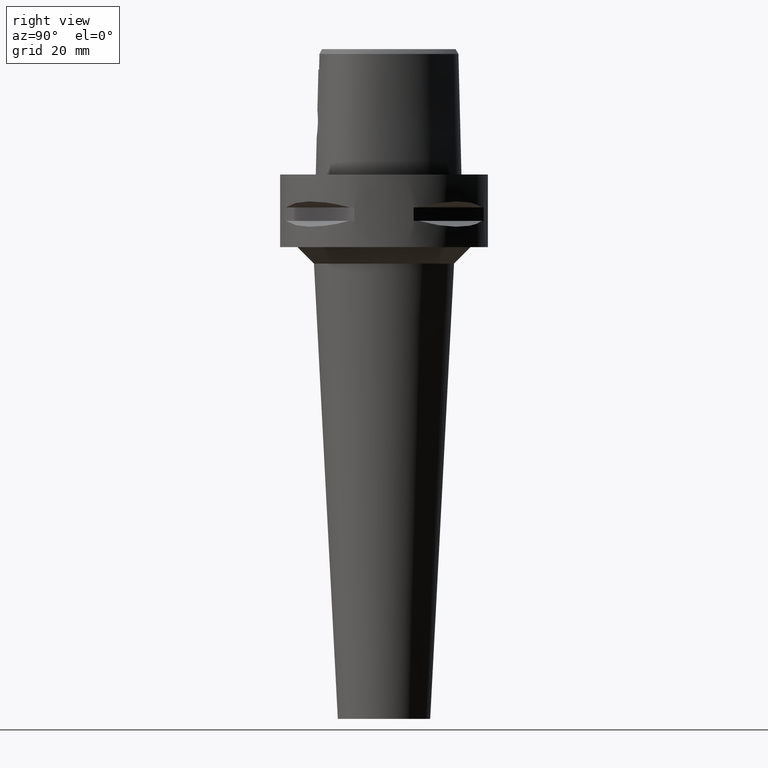
[diagram: clean part render]
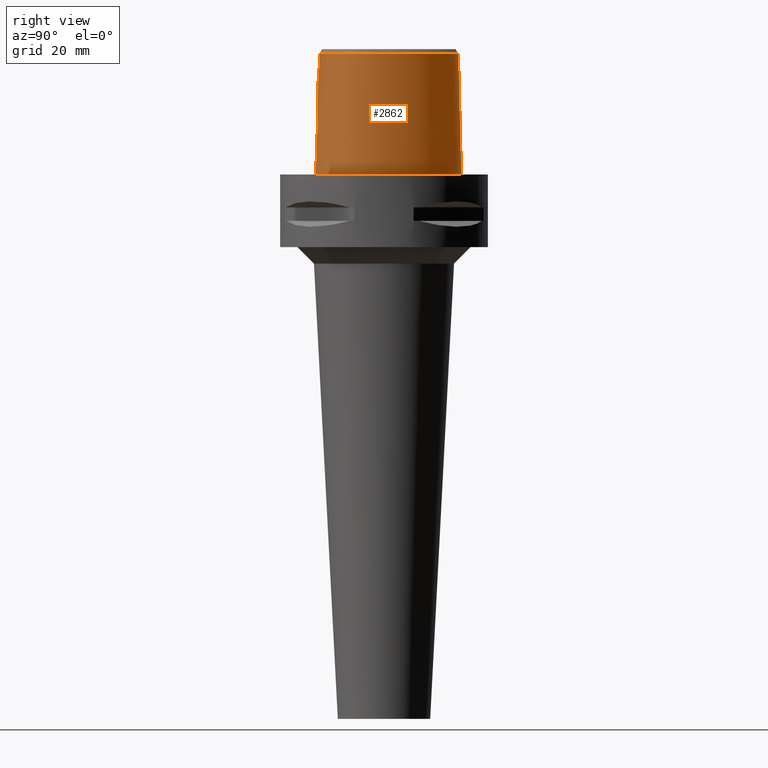
[diagram: same view with one face highlighted and labeled with its STEP entity id]
A machine part, right view. The second image highlights one B-rep face of the part: STEP entity #2862.
In plain terms, the highlighted face is a freeform B-spline surface patch.
Its self-contained STEP definition (entity closure, byte-faithful):
#128=CARTESIAN_POINT('',(3.637738219117E0,-1.956971420299E1,3.652185956444E1));
#138=CARTESIAN_POINT('',(-1.838219482523E-11,2.256201468012E1,
3.652186680744E1));
#139=CARTESIAN_POINT('',(4.171993584307E-1,2.256201468011E1,3.652186680744E1));
#140=CARTESIAN_POINT('',(1.249603453523E0,2.251676058831E1,3.652181696066E1));
#141=CARTESIAN_POINT('',(2.580622632077E0,2.229836723835E1,3.652187151887E1));
#142=CARTESIAN_POINT('',(3.971130271608E0,2.191470946448E1,3.652187009073E1));
#143=CARTESIAN_POINT('',(5.447496043330E0,2.133954691984E1,3.652186509164E1));
#144=CARTESIAN_POINT('',(7.007850867119E0,2.054465954524E1,3.652186932336E1));
#145=CARTESIAN_POINT('',(8.632616514144E0,1.951126396160E1,3.652186894074E1));
#146=CARTESIAN_POINT('',(1.030418514777E1,1.822178431263E1,3.652186431496E1));
#147=CARTESIAN_POINT('',(1.201370456549E1,1.664929386614E1,3.652187317193E1));
#148=CARTESIAN_POINT('',(1.374594834486E1,1.476247980046E1,3.652185738440E1));
#149=CARTESIAN_POINT('',(1.544687040995E1,1.256021799104E1,3.652184335891E1));
#150=CARTESIAN_POINT('',(1.700153988003E1,1.015329342093E1,3.652186371429E1));
#151=CARTESIAN_POINT('',(1.835350625169E1,7.622001081572E0,3.652186817750E1));
#152=CARTESIAN_POINT('',(1.946241133772E1,5.048633134594E0,3.652186542705E1));
#153=CARTESIAN_POINT('',(2.028765594702E1,2.576626585662E0,3.652185910711E1));
#154=CARTESIAN_POINT('',(2.084580456606E1,2.742406849541E-1,3.652187534039E1));
#155=CARTESIAN_POINT('',(2.117115318152E1,-1.849196009891E0,3.652186225802E1));
#156=CARTESIAN_POINT('',(2.129340838171E1,-3.800778834787E0,3.652186975641E1));
#157=CARTESIAN_POINT('',(2.123867543104E1,-5.574357211978E0,3.652186774372E1));
#158=CARTESIAN_POINT('',(2.102929399417E1,-7.185750783590E0,3.652186494827E1));
#159=CARTESIAN_POINT('',(2.069138192977E1,-8.617506394224E0,3.652187151289E1));
#160=CARTESIAN_POINT('',(2.024279198428E1,-9.899629971922E0,3.652185499921E1));
#161=CARTESIAN_POINT('',(1.969156416648E1,-1.105822883391E1,3.652188522277E1));
#162=CARTESIAN_POINT('',(1.902337791240E1,-1.213408646941E1,3.652185335468E1));
#163=CARTESIAN_POINT('',(1.820664389284E1,-1.317508257993E1,3.652187323368E1));
#164=CARTESIAN_POINT('',(1.722230521342E1,-1.418809487737E1,3.652186624130E1));
#165=CARTESIAN_POINT('',(1.602873964973E1,-1.518694737334E1,3.652187125588E1));
#166=CARTESIAN_POINT('',(1.459982171018E1,-1.615558792880E1,3.652186779895E1));
#167=CARTESIAN_POINT('',(1.294313851175E1,-1.705908406111E1,3.652186209944E1));
#168=CARTESIAN_POINT('',(1.103559455739E1,-1.788403408934E1,3.652187916097E1));
#169=CARTESIAN_POINT('',(8.848224265328E0,-1.860864606153E1,3.652185652239E1));
#170=CARTESIAN_POINT('',(6.398000191490E0,-1.919437085725E1,3.652188342574E1));
#171=CARTESIAN_POINT('',(4.579564960882E0,-1.946936569377E1,3.652183536802E1));
#172=CARTESIAN_POINT('',(3.637738219117E0,-1.956971420299E1,3.652185956444E1));
#243=DIRECTION('',(-1.665636293796E-9,-2.499140646182E-2,-9.996876660253E-1));
#244=VECTOR('',#243,1.225382733632E1);
#245=CARTESIAN_POINT('',(2.041042029991E-8,-1.988004246002E1,3.180000004972E1));
#246=LINE('',#245,#244);
#263=CARTESIAN_POINT('',(-6.476573784197E-13,-2.038876923348E1,1.145E1));
#268=DIRECTION('',(-3.953538116337E-13,-2.499051295390E-2,-9.996876883619E-1));
#269=VECTOR('',#268,1.145357708542E1);
#270=CARTESIAN_POINT('',(-6.476573784197E-13,-2.038876923348E1,1.145E1));
#271=LINE('',#270,#269);
#291=CARTESIAN_POINT('',(-5.175872735981E-12,-2.0675E1,5.617728504603E-14));
#292=CARTESIAN_POINT('',(9.993560509802E-1,-2.0675E1,5.617728504603E-14));
#293=CARTESIAN_POINT('',(2.955454059954E0,-2.059182991098E1,
-2.607196872392E-14));
#294=CARTESIAN_POINT('',(5.793056832366E0,-2.023445547095E1,0.E0));
#295=CARTESIAN_POINT('',(8.440299845030E0,-1.966898990197E1,0.E0));
#296=CARTESIAN_POINT('',(1.082569887884E1,-1.893751788510E1,0.E0));
#297=CARTESIAN_POINT('',(1.292144293781E1,-1.808304144246E1,0.E0));
#298=CARTESIAN_POINT('',(1.473190987268E1,-1.714161088191E1,0.E0));
#299=CARTESIAN_POINT('',(1.628058086811E1,-1.613700341594E1,0.E0));
#300=CARTESIAN_POINT('',(1.758462319708E1,-1.509429163050E1,0.E0));
#301=CARTESIAN_POINT('',(1.868311493360E1,-1.401452497844E1,0.E0));
#302=CARTESIAN_POINT('',(1.959652438141E1,-1.290475345799E1,0.E0));
#303=CARTESIAN_POINT('',(2.036064678625E1,-1.173722907498E1,0.E0));
#304=CARTESIAN_POINT('',(2.098286737742E1,-1.049796407517E1,0.E0));
#305=CARTESIAN_POINT('',(2.148460262653E1,-9.152658909068E0,0.E0));
#306=CARTESIAN_POINT('',(2.186688955230E1,-7.668741930683E0,0.E0));
#307=CARTESIAN_POINT('',(2.211748022392E1,-6.011344606948E0,0.E0));
#308=CARTESIAN_POINT('',(2.221114513228E1,-4.165101131631E0,0.E0));
#309=CARTESIAN_POINT('',(2.211859909826E1,-2.119791264276E0,0.E0));
#310=CARTESIAN_POINT('',(2.180697303124E1,1.274638893092E-1,0.E0));
#311=CARTESIAN_POINT('',(2.124390727169E1,2.561688994167E0,0.E0));
#312=CARTESIAN_POINT('',(2.040432990039E1,5.142967568817E0,0.E0));
#313=CARTESIAN_POINT('',(1.928615762684E1,7.790527726073E0,0.E0));
#314=CARTESIAN_POINT('',(1.790818983488E1,1.041471447125E1,0.E0));
#315=CARTESIAN_POINT('',(1.631740085403E1,1.291115934797E1,0.E0));
#316=CARTESIAN_POINT('',(1.457981575214E1,1.519116277501E1,0.E0));
#317=CARTESIAN_POINT('',(1.276360468057E1,1.719471030503E1,0.E0));
#318=CARTESIAN_POINT('',(1.094031032691E1,1.888405274651E1,0.E0));
#319=CARTESIAN_POINT('',(9.153147211203E0,2.026455207171E1,0.E0));
#320=CARTESIAN_POINT('',(7.435015692264E0,2.135402119262E1,0.E0));
#321=CARTESIAN_POINT('',(5.795953209949E0,2.218530691809E1,0.E0));
#322=CARTESIAN_POINT('',(4.238113018427E0,2.278980944085E1,0.E0));
#323=CARTESIAN_POINT('',(2.755912777143E0,2.319591735050E1,0.E0));
#324=CARTESIAN_POINT('',(1.346169757093E0,2.342625517229E1,
-2.473230234680E-14));
#325=CARTESIAN_POINT('',(4.420725725798E-1,2.347499999999E1,
5.329070518201E-14));
#326=CARTESIAN_POINT('',(3.587341913880E-11,2.347499999999E1,
5.329070518201E-14));
#331=CARTESIAN_POINT('',(3.587341913880E-11,2.347499999999E1,
5.329070518201E-14));
#366=CARTESIAN_POINT('',(-5.175872735981E-12,-2.0675E1,5.617728504603E-14));
#909=CARTESIAN_POINT('',(-6.476573784197E-13,-2.038876923348E1,1.145E1));
#910=CARTESIAN_POINT('',(3.839028848140E-1,-2.038876923348E1,1.145E1));
#911=CARTESIAN_POINT('',(1.152243462379E0,-2.037313052447E1,1.156012186274E1));
#912=CARTESIAN_POINT('',(2.211490755070E0,-2.030915438448E1,1.204130376657E1));
#913=CARTESIAN_POINT('',(3.098704077024E0,-2.022090614128E1,1.280612785735E1));
#914=CARTESIAN_POINT('',(3.733987862874E0,-2.013198238112E1,1.379293071204E1));
#915=CARTESIAN_POINT('',(4.063573976196E0,-2.006557535339E1,1.491481271372E1));
#916=CARTESIAN_POINT('',(4.063511810830E0,-2.003615093182E1,1.608355379961E1));
#917=CARTESIAN_POINT('',(3.736209643929E0,-2.004600944296E1,1.720107654896E1));
#918=CARTESIAN_POINT('',(3.105216981776E0,-2.008524534153E1,1.818587507386E1));
#919=CARTESIAN_POINT('',(2.221193572314E0,-2.013542929294E1,1.895288049261E1));
#920=CARTESIAN_POINT('',(1.156612824137E0,-2.017600430851E1,1.943925632080E1));
#921=CARTESIAN_POINT('',(3.854202652826E-1,-2.018628283969E1,1.955E1));
#922=CARTESIAN_POINT('',(0.E0,-2.018628283969E1,1.955E1));
#927=CARTESIAN_POINT('',(3.736696120838E0,-1.967778323292E1,3.180000004973E1));
#928=CARTESIAN_POINT('',(3.726005752326E0,-1.966575923680E1,3.232454431401E1));
#929=CARTESIAN_POINT('',(3.704089546608E0,-1.964135163374E1,3.337368958252E1));
#930=CARTESIAN_POINT('',(3.671106187705E0,-1.960533295284E1,3.494764256979E1));
#931=CARTESIAN_POINT('',(3.649042743234E0,-1.958170238761E1,3.599710209057E1));
#932=CARTESIAN_POINT('',(3.637738219117E0,-1.956971420299E1,3.652185956444E1));
#937=DIRECTION('',(1.485101229638E-12,2.499051290972E-2,-9.996876883630E-1));
#938=VECTOR('',#937,3.653327657485E1);
#939=CARTESIAN_POINT('',(-1.838219482523E-11,2.256201468012E1,
3.652186680744E1));
#940=LINE('',#939,#938);
#944=CARTESIAN_POINT('',(3.736696120838E0,-1.967778323292E1,3.180000004973E1));
#945=CARTESIAN_POINT('',(3.322953877844E0,-1.972294683117E1,3.180000004973E1));
#946=CARTESIAN_POINT('',(2.494485023251E0,-1.979770229043E1,3.179999998342E1));
#947=CARTESIAN_POINT('',(1.247889117313E0,-1.986528006854E1,3.179999998343E1));
#948=CARTESIAN_POINT('',(4.161790006858E-1,-1.988004246001E1,3.180000004972E1));
#949=CARTESIAN_POINT('',(2.041042029991E-8,-1.988004246002E1,3.180000004972E1));
#954=CARTESIAN_POINT('',(2.041042029991E-8,-1.988004246002E1,3.180000004972E1));
#1443=VERTEX_POINT('',#128);
#1444=VERTEX_POINT('',#927);
#1450=CARTESIAN_POINT('',(-1.838219482523E-11,2.256201468012E1,
3.652186680744E1));
#1451=VERTEX_POINT('',#1450);
#1452=VERTEX_POINT('',#331);
#1453=VERTEX_POINT('',#366);
#1454=VERTEX_POINT('',#954);
#1455=CARTESIAN_POINT('',(0.E0,-2.018628283969E1,1.955E1));
#1456=VERTEX_POINT('',#1455);
#1457=VERTEX_POINT('',#263);
#2750=CARTESIAN_POINT('',(-6.840631435669E-1,-2.068668116117E1,
-7.304375700276E-1));
#2751=CARTESIAN_POINT('',(-6.779734146276E-1,-2.037023488671E1,
1.193048031045E1));
#2752=CARTESIAN_POINT('',(-6.718836856883E-1,-2.005378861225E1,
2.459139819093E1));
#2753=CARTESIAN_POINT('',(-6.657939567489E-1,-1.973734233780E1,
3.725231607141E1));
#2754=CARTESIAN_POINT('',(-4.561077449323E-1,-2.069106755346E1,
-7.304375700276E-1));
#2755=CARTESIAN_POINT('',(-4.520500676791E-1,-2.037458452356E1,
1.193048031045E1));
#2756=CARTESIAN_POINT('',(-4.479923904260E-1,-2.005810149367E1,
2.459139819093E1));
#2757=CARTESIAN_POINT('',(-4.439347131729E-1,-1.974161846377E1,
3.725231607141E1));
#2758=CARTESIAN_POINT('',(1.886855603127E0,-2.071358919265E1,
-7.304375700276E-1));
#2759=CARTESIAN_POINT('',(1.870063864694E0,-2.039691456227E1,1.193048031045E1));
#2760=CARTESIAN_POINT('',(1.853272126261E0,-2.008023993189E1,2.459139819093E1));
#2761=CARTESIAN_POINT('',(1.836480387828E0,-1.976356530151E1,3.725231607141E1));
#2762=CARTESIAN_POINT('',(6.344715576210E0,-2.031619964696E1,
-7.304375700276E-1));
#2763=CARTESIAN_POINT('',(6.288476588238E0,-2.000290576642E1,1.193048031045E1));
#2764=CARTESIAN_POINT('',(6.232237600266E0,-1.968961188588E1,2.459139819093E1));
#2765=CARTESIAN_POINT('',(6.175998612294E0,-1.937631800534E1,3.725231607141E1));
#2766=CARTESIAN_POINT('',(1.123887130159E1,-1.891049775755E1,
-7.304375700276E-1));
#2767=CARTESIAN_POINT('',(1.113012657354E1,-1.861140120991E1,1.193048031045E1));
#2768=CARTESIAN_POINT('',(1.102138184550E1,-1.831230466227E1,2.459139819093E1));
#2769=CARTESIAN_POINT('',(1.091263711746E1,-1.801320811462E1,3.725231607141E1));
#2770=CARTESIAN_POINT('',(1.468244496983E1,-1.723001772791E1,
-7.304375700276E-1));
#2771=CARTESIAN_POINT('',(1.452531265879E1,-1.695413752749E1,1.193048031045E1));
#2772=CARTESIAN_POINT('',(1.436818034774E1,-1.667825732708E1,2.459139819093E1));
#2773=CARTESIAN_POINT('',(1.421104803669E1,-1.640237712666E1,3.725231607141E1));
#2774=CARTESIAN_POINT('',(1.697022730940E1,-1.569280482899E1,
-7.304375700276E-1));
#2775=CARTESIAN_POINT('',(1.677374386271E1,-1.544292477241E1,1.193048031045E1));
#2776=CARTESIAN_POINT('',(1.657726041602E1,-1.519304471583E1,2.459139819093E1));
#2777=CARTESIAN_POINT('',(1.638077696933E1,-1.494316465925E1,3.725231607141E1));
#2778=CARTESIAN_POINT('',(1.858171406387E1,-1.418198046361E1,
-7.304375700276E-1));
#2779=CARTESIAN_POINT('',(1.835112158129E1,-1.396357039635E1,1.193048031045E1));
#2780=CARTESIAN_POINT('',(1.812052909872E1,-1.374516032909E1,2.459139819093E1));
#2781=CARTESIAN_POINT('',(1.788993661614E1,-1.352675026183E1,3.725231607141E1));
#2782=CARTESIAN_POINT('',(1.966427014404E1,-1.283600704512E1,
-7.304375700276E-1));
#2783=CARTESIAN_POINT('',(1.940779773029E1,-1.264961930470E1,1.193048031045E1));
#2784=CARTESIAN_POINT('',(1.915132531654E1,-1.246323156428E1,2.459139819093E1));
#2785=CARTESIAN_POINT('',(1.889485290278E1,-1.227684382385E1,3.725231607141E1));
#2786=CARTESIAN_POINT('',(2.036546124275E1,-1.175800453071E1,
-7.304375700276E-1));
#2787=CARTESIAN_POINT('',(2.009084478490E1,-1.159945464424E1,1.193048031045E1));
#2788=CARTESIAN_POINT('',(1.981622832704E1,-1.144090475777E1,2.459139819093E1));
#2789=CARTESIAN_POINT('',(1.954161186918E1,-1.128235487130E1,3.725231607141E1));
#2790=CARTESIAN_POINT('',(2.094844325616E1,-1.061175396887E1,
-7.304375700276E-1));
#2791=CARTESIAN_POINT('',(2.065879053281E1,-1.048283621678E1,1.193048031045E1));
#2792=CARTESIAN_POINT('',(2.036913780946E1,-1.035391846470E1,2.459139819093E1));
#2793=CARTESIAN_POINT('',(2.007948508612E1,-1.022500071261E1,3.725231607141E1));
#2794=CARTESIAN_POINT('',(2.157281239E1,-9.001246194403E0,-7.304375700276E-1));
#2795=CARTESIAN_POINT('',(2.126836747175E1,-8.910752262246E0,1.193048031045E1));
#2796=CARTESIAN_POINT('',(2.096392255350E1,-8.820258330089E0,2.459139819093E1));
#2797=CARTESIAN_POINT('',(2.065947763525E1,-8.729764397932E0,3.725231607141E1));
#2798=CARTESIAN_POINT('',(2.207548128839E1,-6.850245535093E0,
-7.304375700276E-1));
#2799=CARTESIAN_POINT('',(2.176083717210E1,-6.805026051799E0,1.193048031045E1));
#2800=CARTESIAN_POINT('',(2.144619305581E1,-6.759806568504E0,2.459139819093E1));
#2801=CARTESIAN_POINT('',(2.113154893953E1,-6.714587085209E0,3.725231607141E1));
#2802=CARTESIAN_POINT('',(2.226285556264E1,-4.100361500065E0,
-7.304375700276E-1));
#2803=CARTESIAN_POINT('',(2.194536983845E1,-4.102220498939E0,1.193048031045E1));
#2804=CARTESIAN_POINT('',(2.162788411426E1,-4.104079497812E0,2.459139819093E1));
#2805=CARTESIAN_POINT('',(2.131039839007E1,-4.105938496686E0,3.725231607141E1));
#2806=CARTESIAN_POINT('',(2.199640701324E1,-2.778990167054E-1,
-7.304375700276E-1));
#2807=CARTESIAN_POINT('',(2.168301106682E1,-3.332743938119E-1,
1.193048031045E1));
#2808=CARTESIAN_POINT('',(2.136961512041E1,-3.886497709185E-1,
2.459139819093E1));
#2809=CARTESIAN_POINT('',(2.105621917400E1,-4.440251480250E-1,
3.725231607141E1));
#2810=CARTESIAN_POINT('',(2.076670354655E1,4.663413653061E0,
-7.304375700276E-1));
#2811=CARTESIAN_POINT('',(2.046725049222E1,4.555493666673E0,1.193048031045E1));
#2812=CARTESIAN_POINT('',(2.016779743789E1,4.447573680286E0,2.459139819093E1));
#2813=CARTESIAN_POINT('',(1.986834438356E1,4.339653693898E0,3.725231607141E1));
#2814=CARTESIAN_POINT('',(1.808416038079E1,1.044089487076E1,
-7.304375700276E-1));
#2815=CARTESIAN_POINT('',(1.780867312503E1,1.028184211100E1,1.193048031045E1));
#2816=CARTESIAN_POINT('',(1.753318586928E1,1.012278935124E1,2.459139819093E1));
#2817=CARTESIAN_POINT('',(1.725769861352E1,9.963736591479E0,3.725231607141E1));
#2818=CARTESIAN_POINT('',(1.442198651792E1,1.565278600075E1,
-7.304375700276E-1));
#2819=CARTESIAN_POINT('',(1.417879762676E1,1.544741198779E1,1.193048031045E1));
#2820=CARTESIAN_POINT('',(1.393560873560E1,1.524203797483E1,2.459139819093E1));
#2821=CARTESIAN_POINT('',(1.369241984444E1,1.503666396187E1,3.725231607141E1));
#2822=CARTESIAN_POINT('',(1.075753573638E1,1.918839675541E1,
-7.304375700276E-1));
#2823=CARTESIAN_POINT('',(1.055288408934E1,1.894467591161E1,1.193048031045E1));
#2824=CARTESIAN_POINT('',(1.034823244230E1,1.870095506781E1,2.459139819093E1));
#2825=CARTESIAN_POINT('',(1.014358079525E1,1.845723422401E1,3.725231607141E1));
#2826=CARTESIAN_POINT('',(7.580410838768E0,2.133037926053E1,
-7.304375700276E-1));
#2827=CARTESIAN_POINT('',(7.420053162195E0,2.105635749463E1,1.193048031045E1));
#2828=CARTESIAN_POINT('',(7.259695485622E0,2.078233572872E1,2.459139819093E1));
#2829=CARTESIAN_POINT('',(7.099337809049E0,2.050831396282E1,3.725231607141E1));
#2830=CARTESIAN_POINT('',(5.105252915082E0,2.254305023984E1,
-7.304375700276E-1));
#2831=CARTESIAN_POINT('',(4.987110686577E0,2.224795285346E1,1.193048031045E1));
#2832=CARTESIAN_POINT('',(4.868968458072E0,2.195285546708E1,2.459139819093E1));
#2833=CARTESIAN_POINT('',(4.750826229567E0,2.165775808070E1,3.725231607141E1));
#2834=CARTESIAN_POINT('',(2.568271205215E0,2.331126238121E1,
-7.304375700276E-1));
#2835=CARTESIAN_POINT('',(2.503210915394E0,2.299958944026E1,1.193048031045E1));
#2836=CARTESIAN_POINT('',(2.438150625573E0,2.268791649931E1,2.459139819093E1));
#2837=CARTESIAN_POINT('',(2.373090335752E0,2.237624355837E1,3.725231607141E1));
#2838=CARTESIAN_POINT('',(6.155340738984E-1,2.351883497480E1,
-7.304375700276E-1));
#2839=CARTESIAN_POINT('',(5.990982039507E-1,2.320165473453E1,1.193048031045E1));
#2840=CARTESIAN_POINT('',(5.826623340029E-1,2.288447449426E1,2.459139819093E1));
#2841=CARTESIAN_POINT('',(5.662264640552E-1,2.256729425400E1,3.725231607141E1));
#2842=CARTESIAN_POINT('',(-4.812391253009E-1,2.348607176013E1,
-7.304375700276E-1));
#2843=CARTESIAN_POINT('',(-4.685451985587E-1,2.316976079084E1,
1.193048031045E1));
#2844=CARTESIAN_POINT('',(-4.558512718166E-1,2.285344982155E1,
2.459139819093E1));
#2845=CARTESIAN_POINT('',(-4.431573450744E-1,2.253713885225E1,
3.725231607141E1));
#2846=CARTESIAN_POINT('',(-7.217521646050E-1,2.347150798423E1,
-7.304375700276E-1));
#2847=CARTESIAN_POINT('',(-7.025952890716E-1,2.315559750432E1,
1.193048031045E1));
#2848=CARTESIAN_POINT('',(-6.834384135383E-1,2.283968702440E1,
2.459139819093E1));
#2849=CARTESIAN_POINT('',(-6.642815380049E-1,2.252377654449E1,
3.725231607141E1));
#2850=B_SPLINE_SURFACE_WITH_KNOTS('',3,3,((#2750,#2751,#2752,#2753),(#2754,
#2755,#2756,#2757),(#2758,#2759,#2760,#2761),(#2762,#2763,#2764,#2765),(#2766,
#2767,#2768,#2769),(#2770,#2771,#2772,#2773),(#2774,#2775,#2776,#2777),(#2778,
#2779,#2780,#2781),(#2782,#2783,#2784,#2785),(#2786,#2787,#2788,#2789),(#2790,
#2791,#2792,#2793),(#2794,#2795,#2796,#2797),(#2798,#2799,#2800,#2801),(#2802,
#2803,#2804,#2805),(#2806,#2807,#2808,#2809),(#2810,#2811,#2812,#2813),(#2814,
#2815,#2816,#2817),(#2818,#2819,#2820,#2821),(#2822,#2823,#2824,#2825),(#2826,
#2827,#2828,#2829),(#2830,#2831,#2832,#2833),(#2834,#2835,#2836,#2837),(#2838,
#2839,#2840,#2841),(#2842,#2843,#2844,#2845),(#2846,#2847,#2848,#2849)),
.UNSPECIFIED.,.F.,.F.,.F.,(4,1,1,1,1,1,1,1,1,1,1,1,1,1,1,1,1,1,1,1,1,1,4),(4,4),
(-8.985960173571E-3,0.E0,8.333333333336E-2,1.666666666667E-1,2.083333333333E-1,
2.5E-1,2.916666666666E-1,3.124999999999E-1,3.333333333332E-1,3.541666666666E-1,
3.749999999999E-1,4.166666666666E-1,4.583333333332E-1,4.999999999999E-1,
5.833333333331E-1,6.666666666665E-1,7.499999999998E-1,8.333333333330E-1,
8.749999999997E-1,9.166666666664E-1,9.583333333330E-1,1.E0,1.011710456763E0),(
4.087753462112E-9,9.999997915246E-1),.UNSPECIFIED.);
#2851=ORIENTED_EDGE('',*,*,#2283,.F.);
#2852=ORIENTED_EDGE('',*,*,#2267,.F.);
#2853=ORIENTED_EDGE('',*,*,#2742,.T.);
#2854=ORIENTED_EDGE('',*,*,#2263,.F.);
#2856=ORIENTED_EDGE('',*,*,#2855,.F.);
#2857=ORIENTED_EDGE('',*,*,#1626,.T.);
#2858=ORIENTED_EDGE('',*,*,#1892,.F.);
#2859=ORIENTED_EDGE('',*,*,#2257,.T.);
#2860=EDGE_LOOP('',(#2851,#2852,#2853,#2854,#2856,#2857,#2858,#2859));
#2861=FACE_OUTER_BOUND('',#2860,.F.);
#173=B_SPLINE_CURVE_WITH_KNOTS('',3,(#138,#139,#140,#141,#142,#143,#144,#145,
#146,#147,#148,#149,#150,#151,#152,#153,#154,#155,#156,#157,#158,#159,#160,#161,
#162,#163,#164,#165,#166,#167,#168,#169,#170,#171,#172),.UNSPECIFIED.,.F.,.F.,
(4,1,1,1,1,1,1,1,1,1,1,1,1,1,1,1,1,1,1,1,1,1,1,1,1,1,1,1,1,1,1,1,4),(0.E0,
3.125E-2,6.25E-2,9.375E-2,1.25E-1,1.5625E-1,1.875E-1,2.1875E-1,2.5E-1,2.8125E-1,
3.125E-1,3.4375E-1,3.75E-1,4.0625E-1,4.375E-1,4.6875E-1,5.E-1,5.3125E-1,
5.625E-1,5.9375E-1,6.25E-1,6.5625E-1,6.875E-1,7.1875E-1,7.5E-1,7.8125E-1,
8.125E-1,8.4375E-1,8.75E-1,9.0625E-1,9.375E-1,9.6875E-1,1.E0),.UNSPECIFIED.);
#327=B_SPLINE_CURVE_WITH_KNOTS('',3,(#291,#292,#293,#294,#295,#296,#297,#298,
#299,#300,#301,#302,#303,#304,#305,#306,#307,#308,#309,#310,#311,#312,#313,#314,
#315,#316,#317,#318,#319,#320,#321,#322,#323,#324,#325,#326),.UNSPECIFIED.,.F.,
.F.,(4,1,1,1,1,1,1,1,1,1,1,1,1,1,1,1,1,1,1,1,1,1,1,1,1,1,1,1,1,1,1,1,1,4),(0.E0,
3.030303030303E-2,6.060606060606E-2,9.090909090909E-2,1.212121212121E-1,
1.515151515152E-1,1.818181818182E-1,2.121212121212E-1,2.424242424242E-1,
2.727272727273E-1,3.030303030303E-1,3.333333333333E-1,3.636363636364E-1,
3.939393939394E-1,4.242424242424E-1,4.545454545455E-1,4.848484848485E-1,
5.151515151515E-1,5.454545454545E-1,5.757575757576E-1,6.060606060606E-1,
6.363636363636E-1,6.666666666667E-1,6.969696969697E-1,7.272727272727E-1,
7.575757575758E-1,7.878787878788E-1,8.181818181818E-1,8.484848484848E-1,
8.787878787879E-1,9.090909090909E-1,9.393939393939E-1,9.696969696970E-1,1.E0),
.UNSPECIFIED.);
#923=B_SPLINE_CURVE_WITH_KNOTS('',3,(#909,#910,#911,#912,#913,#914,#915,#916,
#917,#918,#919,#920,#921,#922),.UNSPECIFIED.,.F.,.F.,(4,1,1,1,1,1,1,1,1,1,1,4),(
0.E0,9.090909090909E-2,1.818181818182E-1,2.727272727273E-1,3.636363636364E-1,
4.545454545455E-1,5.454545454545E-1,6.363636363636E-1,7.272727272727E-1,
8.181818181818E-1,9.090909090909E-1,1.E0),.UNSPECIFIED.);
#933=B_SPLINE_CURVE_WITH_KNOTS('',3,(#927,#928,#929,#930,#931,#932),
.UNSPECIFIED.,.F.,.F.,(4,1,1,4),(0.E0,3.333333333333E-1,6.666666666667E-1,1.E0),
.UNSPECIFIED.);
#950=B_SPLINE_CURVE_WITH_KNOTS('',3,(#944,#945,#946,#947,#948,#949),
.UNSPECIFIED.,.F.,.F.,(4,1,1,4),(0.E0,3.333333333333E-1,6.666666666667E-1,1.E0),
.UNSPECIFIED.);
#1626=EDGE_CURVE('',#1444,#1443,#933,.T.);
#1892=EDGE_CURVE('',#1451,#1443,#173,.T.);
#2257=EDGE_CURVE('',#1451,#1452,#940,.T.);
#2263=EDGE_CURVE('',#1454,#1456,#246,.T.);
#2267=EDGE_CURVE('',#1457,#1453,#271,.T.);
#2283=EDGE_CURVE('',#1453,#1452,#327,.T.);
#2742=EDGE_CURVE('',#1457,#1456,#923,.T.);
#2855=EDGE_CURVE('',#1444,#1454,#950,.T.);
#2862=ADVANCED_FACE('',(#2861),#2850,.T.);